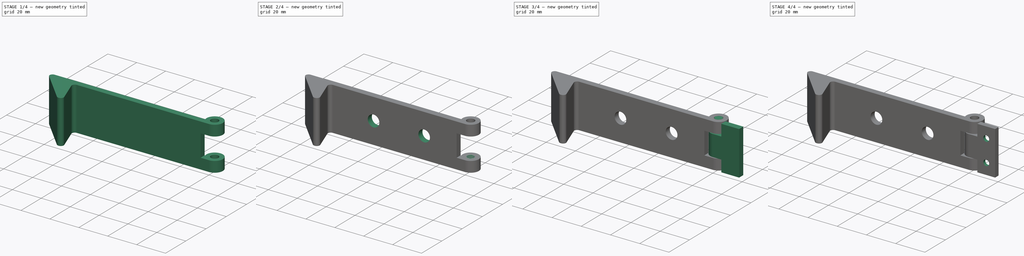
[diagram: build sequence overview — one tinted view per stage of 4, left to right]
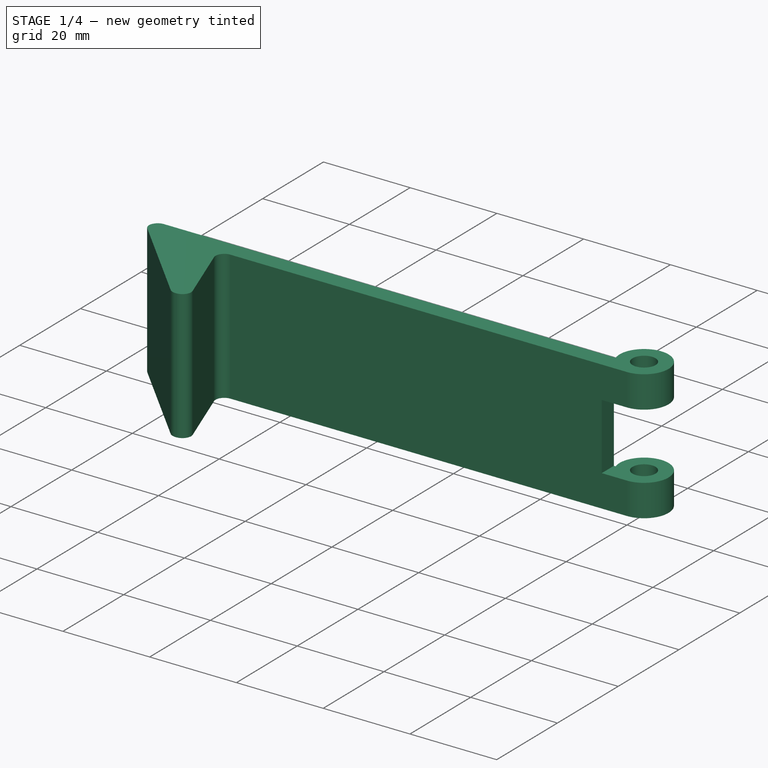
[diagram: stage 1 of 4 — iso view after this stage's code; geometry added in this stage tinted green]
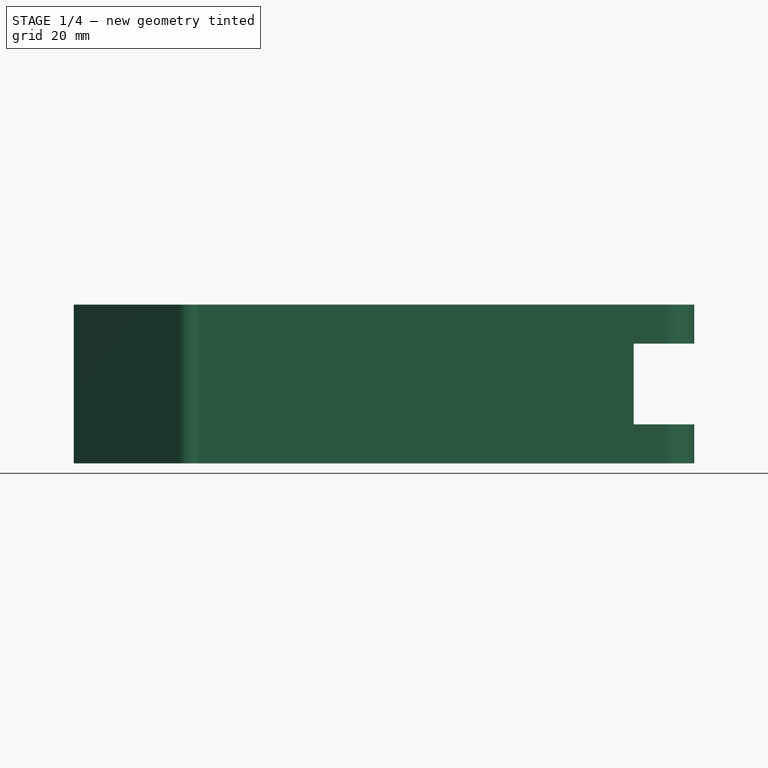
[diagram: stage 1 of 4 — front view after this stage's code; geometry added in this stage tinted green]
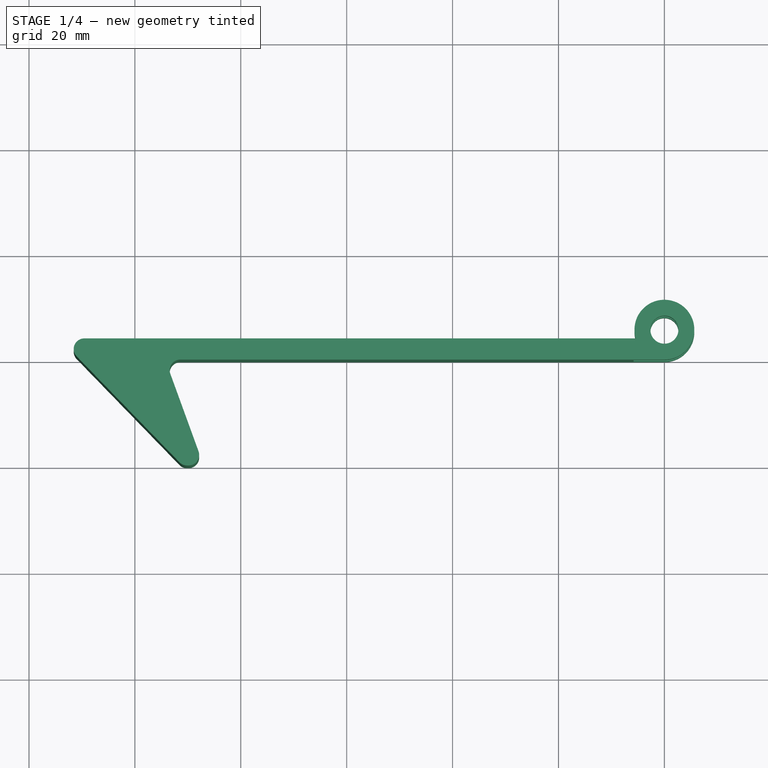
[diagram: stage 1 of 4 — top view after this stage's code; geometry added in this stage tinted green]
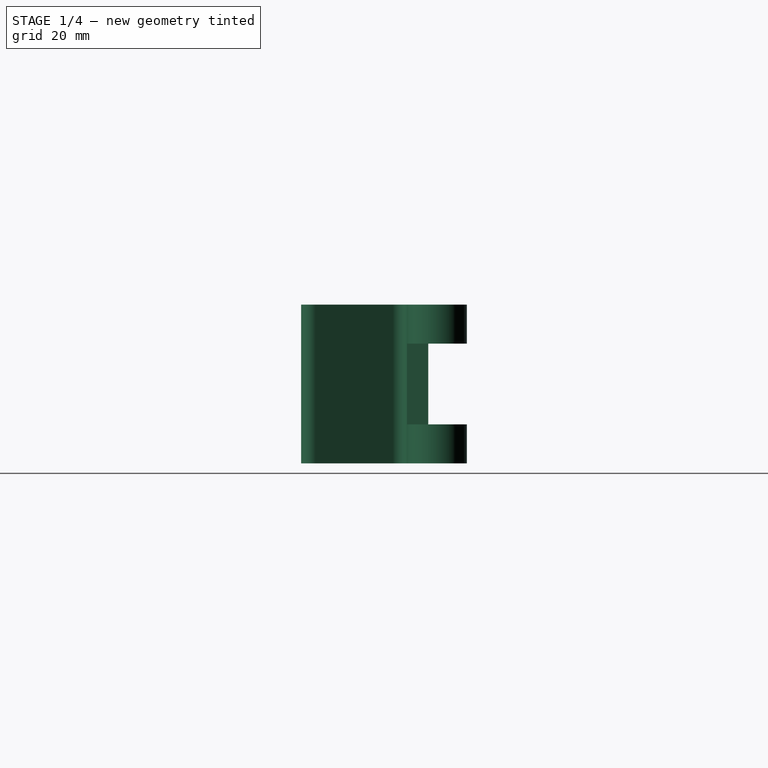
[diagram: stage 1 of 4 — right view after this stage's code; geometry added in this stage tinted green]
FCSTD DOCUMENT  (FreeCAD 0.20RUnknown)
Label: GitterStopper
License: All rights reserved
LicenseURL: http://en.wikipedia.org/wiki/All_rights_reserved
objects: Sketcher::SketchObject×9, PartDesign::Pad×4, PartDesign::Pocket×4, PartDesign::Fillet×2, PartDesign::Hole×2, PartDesign::Body×2
note: 35 computed .brp shape members not serialized (recipe doc carries the construction recipe); baked Part::Feature solids carry a one-line shape summary decoded from their .brp

FEATURE [Sketcher::SketchObject] Sketch
  FullyConstrained = true
  MapMode = 5
  Support = -> [XY_Plane]
  sketch-geometry (18):
    g0: Circle CenterX=10 CenterY=-10 CenterZ=0 NormalX=0 NormalY=0 NormalZ=1 AngleXU=0 Radius=10
    g1: LineSegment StartX=120 StartY=0 StartZ=0 EndX=138 EndY=0 EndZ=0
    g2: LineSegment StartX=138 StartY=0 StartZ=0 EndX=138 EndY=-50 EndZ=0
    g3: LineSegment StartX=138 StartY=-50 StartZ=0 EndX=120 EndY=-50 EndZ=0
    g4: LineSegment StartX=120 StartY=-50 StartZ=0 EndX=120 EndY=0 EndZ=0
    g5: Circle CenterX=40 CenterY=-10 CenterZ=0 NormalX=0 NormalY=0 NormalZ=1 AngleXU=0 Radius=10
    g6: LineSegment StartX=30 StartY=-10 StartZ=0 EndX=30 EndY=0 EndZ=0
    g7: LineSegment StartX=25.7185 StartY=0 StartZ=0 EndX=120 EndY=0 EndZ=0
    g8: LineSegment StartX=5.71852 StartY=4 StartZ=0 EndX=28.9979 EndY=-20 EndZ=0
    g9: LineSegment StartX=28.9979 StartY=-20 StartZ=0 EndX=32.9979 EndY=-20 EndZ=0
    g10: LineSegment StartX=25.7185 StartY=0 StartZ=0 EndX=32.9979 EndY=-20 EndZ=0
    g11: LineSegment StartX=32.9979 StartY=-20 StartZ=0 EndX=40 EndY=-20 EndZ=0
    g12: LineSegment StartX=40 StartY=-10 StartZ=0 EndX=40 EndY=-20 EndZ=0
    g13: Circle CenterX=120 CenterY=5.65 CenterZ=0 NormalX=0 NormalY=0 NormalZ=1 AngleXU=0 Radius=2.65
    g14: LineSegment StartX=120 StartY=5.65 StartZ=0 EndX=120 EndY=3 EndZ=0
    g15: LineSegment StartX=120 StartY=3 StartZ=0 EndX=120 EndY=0 EndZ=0
    g16: LineSegment StartX=114.596 StartY=4 StartZ=0 EndX=5.71852 EndY=4 EndZ=0
    g17: ArcOfCircle CenterX=120 CenterY=5.65 CenterZ=0 NormalX=0 NormalY=0 NormalZ=1 AngleXU=0 Radius=5.65 StartAngle=4.71239 EndAngle=9.72113
  constraints (53):
    c: Tangent(g0,g-1)
    c: Tangent(g0,g-2)
    c: Diameter(g0) = 20
    c: Coincident(g1,g2)
    c: Coincident(g2,g3)
    c: Coincident(g3,g4)
    c: Coincident(g4,g1)
    c: Horizontal(g1)
    c: Horizontal(g3)
    c: Vertical(g2)
    c: Vertical(g4)
    c: DistanceX(g1,g1) = 18
    c: DistanceY(g4,g4) = 50
    c: DistanceX(g-1,g1) = 120  'length'
    c: Tangent(g5,g-1)
    c: Equal(g0,g5)
    c: PointOnObject(g6,g5)
    c: PointOnObject(g6,g-1)
    c: Vertical(g6)
    c: Tangent(g6,g5)
    c: DistanceX(g6,g1) = 90
    c: PointOnObject(g7,g-1)
    c: Coincident(g7,g1)
    c: Coincident(g16,g8)
    c: Coincident(g8,g9)
    c: Horizontal(g9)
    c: PointOnObject(g1,g-1)
    c: Coincident(g10,g7)
    c: Coincident(g10,g9)
    c: Tangent(g5,g10)
    c: Coincident(g11,g9)
    c: Horizontal(g11)
    c: Coincident(g12,g5)
    c: Coincident(g12,g11)
    c: Vertical(g12)
    c: PointOnObject(g11,g5)
    c: DistanceX(g9,g9) = 4
    c: Angle(g10,g7) = 1.22173
    c: DistanceX(g16,g7) = 20
    c: Diameter(g13) = 5.3
    c: Coincident(g15,g7)
    c: Coincident(g14,g15)
    c: Vertical(g14)
    c: Vertical(g15)
    c: PointOnObject(g14,g13)
    c: DistanceY(g15,g15) = 3
    c: Horizontal(g16)
    c: Coincident(g14,g13)
    c: DistanceY(g7,g8) = 4
    c: Coincident(g17,g13)
    c: Coincident(g17,g7)
    c: Coincident(g16,g17)
    c: DistanceY(g-1,g13) = 5.65  'd'
FEATURE [PartDesign::Pad] Pad
  Direction = (0,0,1)
  Length = 30
  Length2 = 10
  Profile = -> Sketch
  ReferenceAxis = -> Sketch [N_Axis]
  Type = 0
FEATURE [PartDesign::Fillet] Fillet
  Base = -> Pad [Edge1,Edge14,Edge11,Edge8]
  BaseFeature = -> Pad
  Radius = 2
  SupportTransform = false
  UseAllEdges = false
FEATURE [Sketcher::SketchObject] Sketch001
  ExternalGeometry = -> [Fillet]
  FullyConstrained = true
  MapMode = 5
  Placement = pos=(0,0,0) rot=(1,0,0;1.5708rad)
  Support = -> [Fillet]
  expr: .Constraints.cut = (5.3 + 6) / 2 + 0.15
  sketch-geometry (6):
    g0: LineSegment StartX=114.2 StartY=7.375 StartZ=0 EndX=134.2 EndY=7.375 EndZ=0
    g1: LineSegment StartX=134.2 StartY=7.375 StartZ=0 EndX=134.2 EndY=22.625 EndZ=0
    g2: LineSegment StartX=134.2 StartY=22.625 StartZ=0 EndX=114.2 EndY=22.625 EndZ=0
    g3: LineSegment StartX=114.2 StartY=22.625 StartZ=0 EndX=114.2 EndY=7.375 EndZ=0
    g4: LineSegment StartX=120 StartY=30 StartZ=0 EndX=120 EndY=22.625 EndZ=0
    g5: LineSegment StartX=120 StartY=0 StartZ=0 EndX=120 EndY=7.375 EndZ=0
  constraints (18):
    c: Coincident(g0,g1)
    c: Coincident(g1,g2)
    c: Coincident(g2,g3)
    c: Coincident(g3,g0)
    c: Horizontal(g0)
    c: Horizontal(g2)
    c: Vertical(g1)
    c: Vertical(g3)
    c: DistanceX(g2,g2) = 20
    c: Coincident(g4,g-3)
    c: PointOnObject(g4,g2)
    c: Vertical(g4)
    c: Coincident(g5,g-3)
    c: PointOnObject(g5,g0)
    c: Vertical(g5)
    c: Equal(g5,g4)
    c: DistanceX(g2,g4) = 5.8  'cut'
    c: DistanceY(g1,g1) = 15.25
FEATURE [PartDesign::Pocket] Pocket
  BaseFeature = -> Fillet
  Direction = (0,1,-2e-16)
  Length = 5
  Length2 = 5
  Profile = -> Sketch001
  ReferenceAxis = -> Sketch001 [N_Axis]
  Type = 1
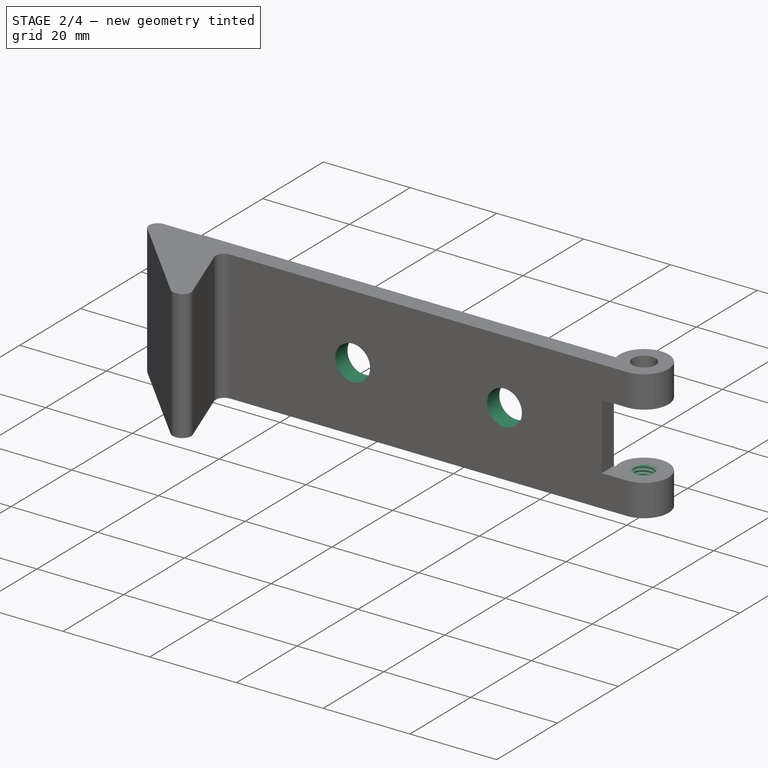
[diagram: stage 2 of 4 — iso view after this stage's code; geometry added in this stage tinted green]
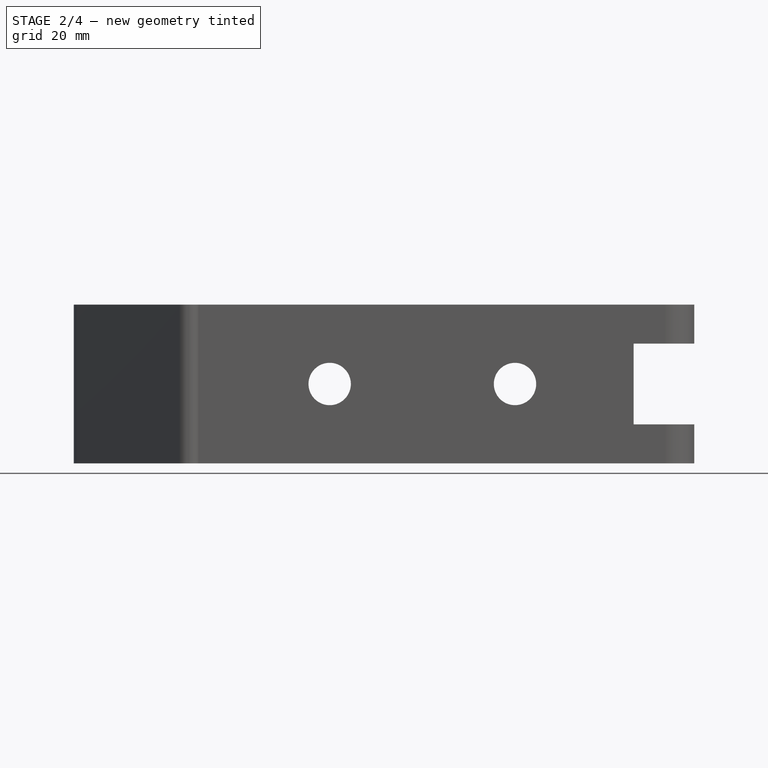
[diagram: stage 2 of 4 — front view after this stage's code; geometry added in this stage tinted green]
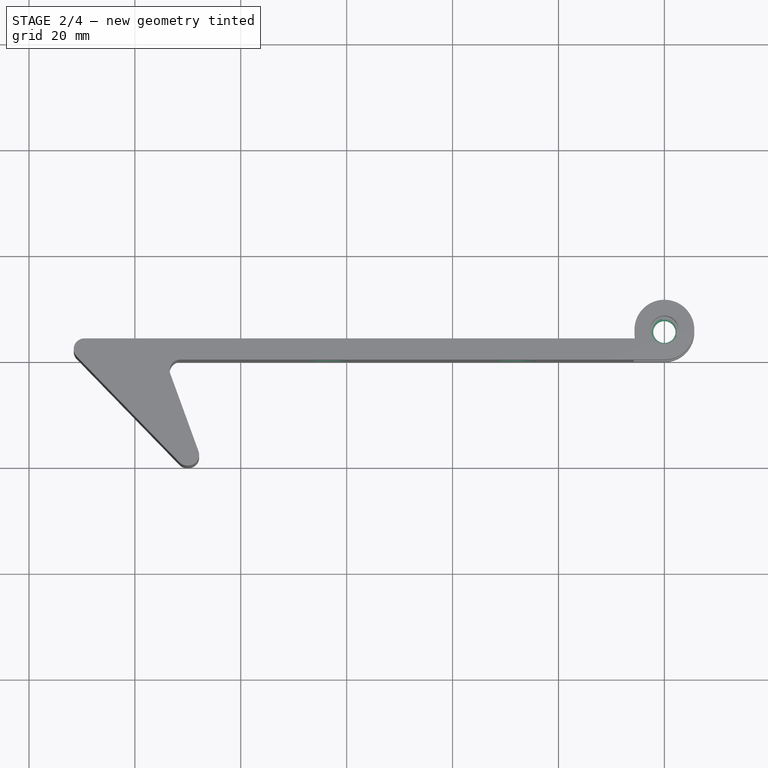
[diagram: stage 2 of 4 — top view after this stage's code; geometry added in this stage tinted green]
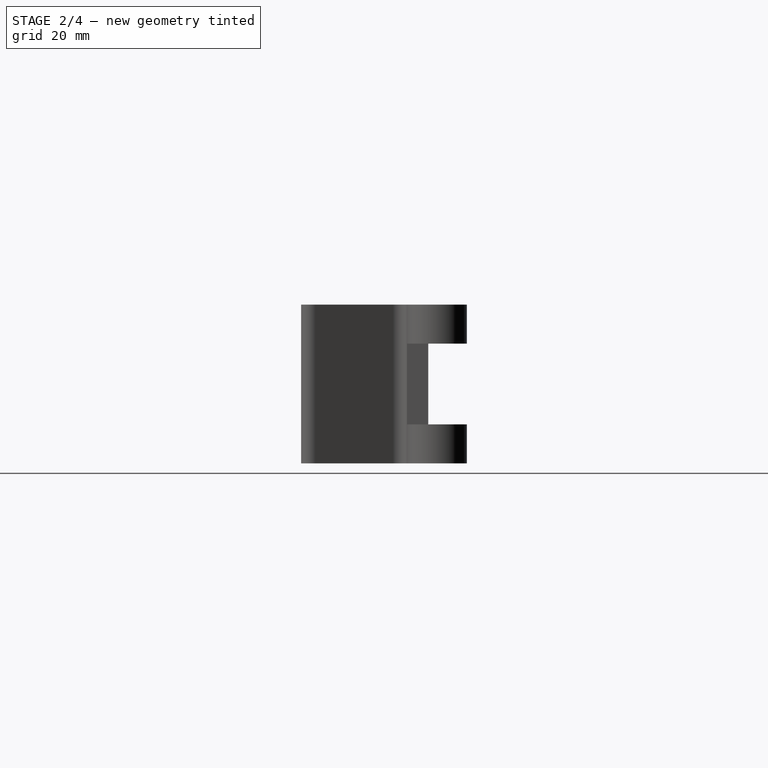
[diagram: stage 2 of 4 — right view after this stage's code; geometry added in this stage tinted green]
FEATURE [Sketcher::SketchObject] Sketch007
  ExternalGeometry = -> [Pocket]
  FullyConstrained = true
  MapMode = 5
  Placement = pos=(0,0,0) rot=(1,0,0;3.14159rad)
  Support = -> [Pocket]
  sketch-geometry (2):
    g0: LineSegment StartX=120 StartY=-5.65 StartZ=0 EndX=120 EndY=-3 EndZ=0
    g1: Circle CenterX=120 CenterY=-5.65 CenterZ=0 NormalX=0 NormalY=0 NormalZ=1 AngleXU=0 Radius=2.65
  constraints (5):
    c: Coincident(g0,g-3)
    c: PointOnObject(g0,g-3)
    c: Vertical(g0)
    c: Coincident(g1,g0)
    c: PointOnObject(g0,g1)
FEATURE [PartDesign::Pad] Pad003
  BaseFeature = -> Pocket
  Direction = (0,0,-1)
  Length = 10
  Length2 = 10
  Profile = -> Sketch007
  ReferenceAxis = -> Sketch007 [N_Axis]
  Type = 3
  UpToFace = -> Pocket [Face4]
FEATURE [PartDesign::Hole] Hole001
  BaseFeature = -> Pad003
  CustomThreadClearance = 0
  Depth = 15
  DepthType = 0
  Diameter = 4.224
  DrillForDepth = false
  DrillPoint = 1
  DrillPointAngle = 118
  HoleCutCountersinkAngle = 90
  HoleCutCustomValues = false
  HoleCutDepth = 0
  HoleCutDiameter = 6.1
  HoleCutType = 0
  ModelThread = true
  Profile = -> Sketch007
  Tapered = false
  TaperedAngle = 90
  ThreadClass = 0
  ThreadDepth = 15
  ThreadDepthType = 0
  ThreadDirection = 0
  ThreadFit = 0
  ThreadSize = 13
  ThreadType = 1
  Threaded = true
  UseCustomThreadClearance = false
FEATURE [PartDesign::Body] Body001
  Group = -> [Sketch002,Pad001,Sketch003,Pocket001,Sketch004,Pad002,Sketch005,Hole,Sketch006,Pocket002,Fillet001]
  Origin = -> Origin001
  Tip = -> Fillet001
FEATURE [Sketcher::SketchObject] Sketch008
  ExternalGeometry = -> [Hole001]
  FullyConstrained = true
  MapMode = 5
  Placement = pos=(0,0,0) rot=(1,0,0;1.5708rad)
  Support = -> [Hole001]
  sketch-geometry (10):
    g0: LineSegment StartX=28.5748 StartY=0 StartZ=0 EndX=56.7874 EndY=0 EndZ=0
    g1: LineSegment StartX=56.7874 StartY=0 StartZ=0 EndX=91.7874 EndY=0 EndZ=0
    g2: LineSegment StartX=91.7874 StartY=0 StartZ=0 EndX=120 EndY=0 EndZ=0
    g3: LineSegment StartX=56.7874 StartY=0 StartZ=0 EndX=56.7874 EndY=15 EndZ=0
    g4: LineSegment StartX=56.7874 StartY=15 StartZ=0 EndX=56.7874 EndY=30 EndZ=0
    g5: LineSegment StartX=91.7874 StartY=0 StartZ=0 EndX=91.7874 EndY=15 EndZ=0
    g6: LineSegment StartX=91.7874 StartY=15 StartZ=0 EndX=91.7874 EndY=30 EndZ=0
    g7: LineSegment StartX=56.7874 StartY=15 StartZ=0 EndX=91.7874 EndY=15 EndZ=0
    g8: Circle CenterX=56.7874 CenterY=15 CenterZ=0 NormalX=0 NormalY=0 NormalZ=1 AngleXU=0 Radius=4
    g9: Circle CenterX=91.7874 CenterY=15 CenterZ=0 NormalX=0 NormalY=0 NormalZ=1 AngleXU=0 Radius=4
  constraints (26):
    c: Coincident(g-4,g0)
    c: Horizontal(g0)
    c: Coincident(g0,g1)
    c: Coincident(g1,g2)
    c: Coincident(g2,g-4)
    c: Horizontal(g2)
    c: Coincident(g0,g3)
    c: Vertical(g3)
    c: Coincident(g3,g4)
    c: PointOnObject(g4,g-3)
    c: Vertical(g4)
    c: Coincident(g1,g5)
    c: Vertical(g5)
    c: Coincident(g5,g6)
    c: PointOnObject(g6,g-3)
    c: Vertical(g6)
    c: Coincident(g3,g7)
    c: Coincident(g7,g5)
    c: Horizontal(g7)
    c: Equal(g4,g3)
    c: Equal(g0,g2)
    c: Coincident(g8,g3)
    c: Coincident(g9,g5)
    c: Equal(g8,g9)
    c: Diameter(g8) = 8
    c: DistanceX(g7,g7) = 35
FEATURE [PartDesign::Pocket] Pocket003
  BaseFeature = -> Hole001
  Direction = (0,1,-2e-16)
  Length = 5
  Length2 = 5
  Profile = -> Sketch008
  ReferenceAxis = -> Sketch008 [N_Axis]
  Type = 1
FEATURE [PartDesign::Body] Body
  Group = -> [Sketch,Pad,Fillet,Sketch001,Pocket,Sketch007,Pad003,Hole001,Sketch008,Pocket003]
  Origin = -> Origin
  Tip = -> Pocket003
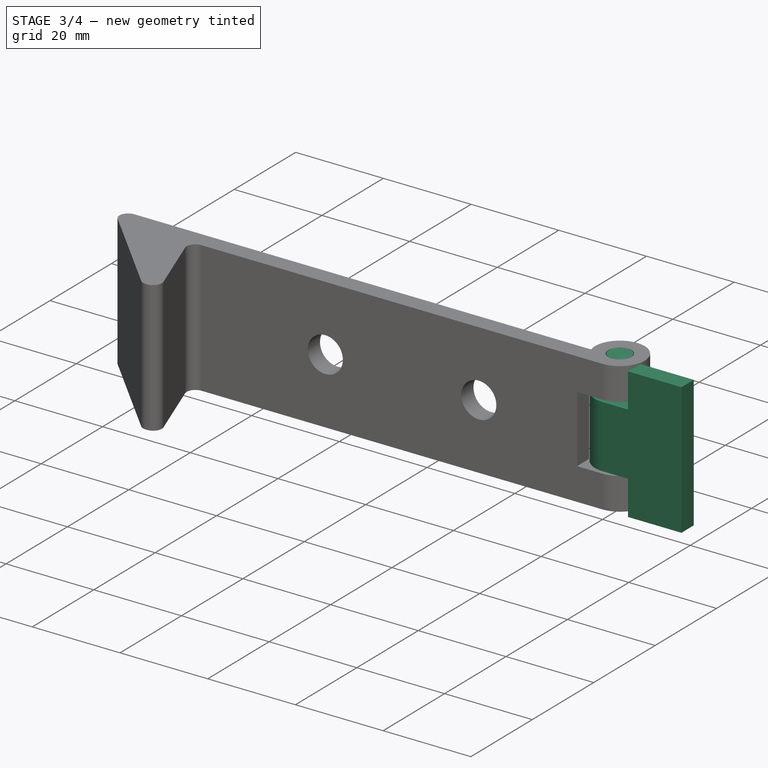
[diagram: stage 3 of 4 — iso view after this stage's code; geometry added in this stage tinted green]
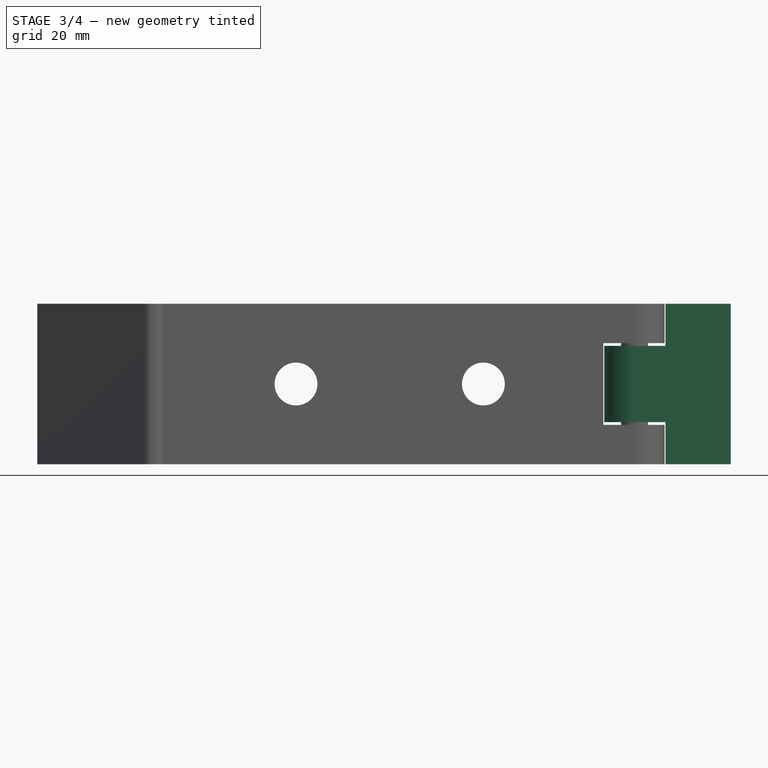
[diagram: stage 3 of 4 — front view after this stage's code; geometry added in this stage tinted green]
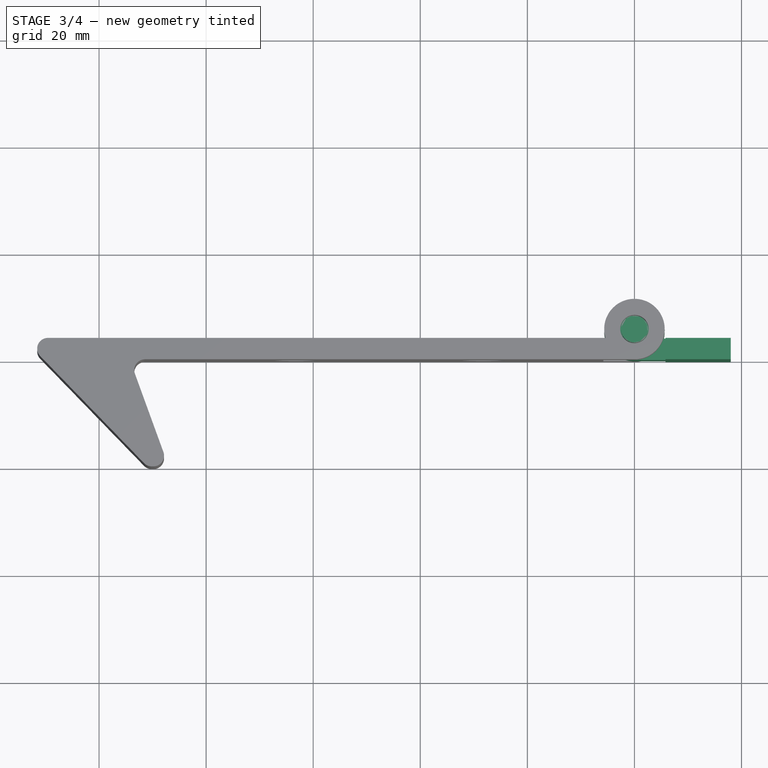
[diagram: stage 3 of 4 — top view after this stage's code; geometry added in this stage tinted green]
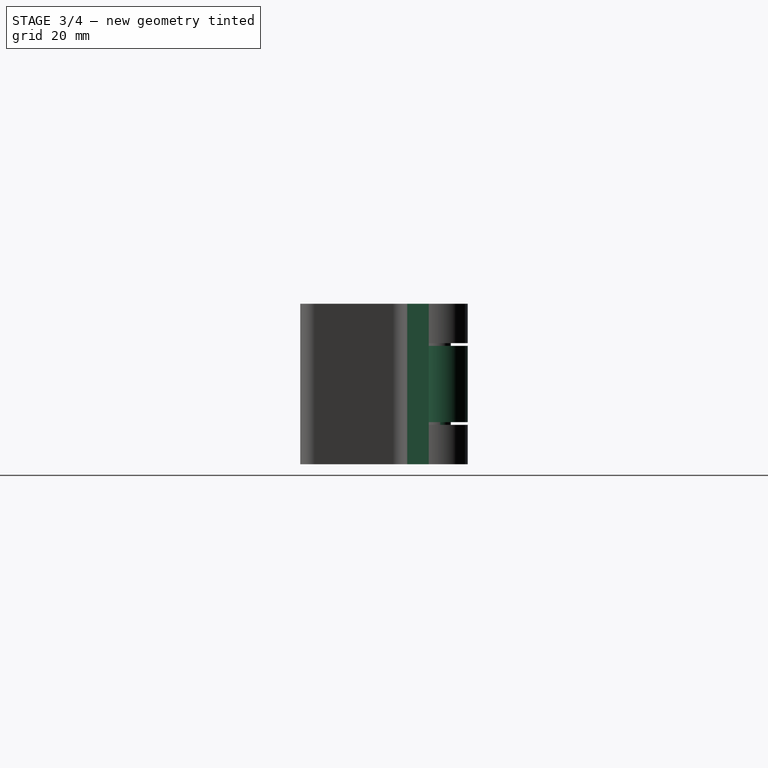
[diagram: stage 3 of 4 — right view after this stage's code; geometry added in this stage tinted green]
FEATURE [Sketcher::SketchObject] Sketch002
  FullyConstrained = true
  MapMode = 5
  Support = -> [XY_Plane001]
  expr: Constraints[11] = <<Sketch>>.Constraints.d
  expr: Constraints[7] = <<Sketch>>.Constraints.length
  sketch-geometry (6):
    g0: LineSegment StartX=120 StartY=0 StartZ=0 EndX=138 EndY=0 EndZ=0
    g1: LineSegment StartX=138 StartY=0 StartZ=0 EndX=138 EndY=4 EndZ=0
    g2: LineSegment StartX=138 StartY=4 StartZ=0 EndX=125.404 EndY=4 EndZ=0
    g3: GeomPoint X=120 Y=5.65 Z=0
    g4: ArcOfCircle CenterX=120 CenterY=5.65 CenterZ=0 NormalX=0 NormalY=0 NormalZ=1 AngleXU=0 Radius=5.65 StartAngle=5.98683 EndAngle=10.9956
    g5: LineSegment StartX=120 StartY=5.65 StartZ=0 EndX=120 EndY=0 EndZ=0
  constraints (16):
    c: Coincident(g0,g1)
    c: Coincident(g1,g2)
    c: Horizontal(g0)
    c: Vertical(g1)
    c: DistanceX(g0,g0) = 18
    c: DistanceY(g1,g1) = 4
    c: Horizontal(g2)
    c: DistanceX(g-1,g3) = 120
    c: Coincident(g4,g3)
    c: Coincident(g4,g0)
    c: Coincident(g4,g2)
    c: DistanceY(g-1,g4) = 5.65
    c: Coincident(g5,g4)
    c: Coincident(g5,g0)
    c: Vertical(g5)
    c: PointOnObject(g0,g-1)
FEATURE [PartDesign::Pad] Pad001
  Direction = (0,0,1)
  Length = 30
  Length2 = 10
  Profile = -> Sketch002
  ReferenceAxis = -> Sketch002 [N_Axis]
  Type = 0
FEATURE [Sketcher::SketchObject] Sketch003
  ExternalGeometry = -> [Pad001]
  FullyConstrained = true
  MapMode = 5
  Placement = pos=(0,0,0) rot=(1,0,0;1.5708rad)
  Support = -> [Pad001]
  expr: Constraints[27] = <<Sketch001>>.Constraints.cut
  sketch-geometry (14):
    g0: LineSegment StartX=125.8 StartY=22.125 StartZ=0 EndX=110.8 EndY=22.125 EndZ=0
    g1: LineSegment StartX=110.8 StartY=22.125 StartZ=0 EndX=110.8 EndY=37.125 EndZ=0
    g2: LineSegment StartX=110.8 StartY=37.125 StartZ=0 EndX=125.8 EndY=37.125 EndZ=0
    g3: LineSegment StartX=125.8 StartY=37.125 StartZ=0 EndX=125.8 EndY=22.125 EndZ=0
    g4: LineSegment StartX=125.8 StartY=7.875 StartZ=0 EndX=110.8 EndY=7.875 EndZ=0
    g5: LineSegment StartX=110.8 StartY=7.875 StartZ=0 EndX=110.8 EndY=-7.125 EndZ=0
    g6: LineSegment StartX=110.8 StartY=-7.125 StartZ=0 EndX=125.8 EndY=-7.125 EndZ=0
    g7: LineSegment StartX=125.8 StartY=-7.125 StartZ=0 EndX=125.8 EndY=7.875 EndZ=0
    g8: LineSegment StartX=110.8 StartY=22.125 StartZ=0 EndX=110.8 EndY=7.875 EndZ=0
    g9: LineSegment StartX=120 StartY=25.125 StartZ=0 EndX=125.8 EndY=25.125 EndZ=0
    g10: LineSegment StartX=125.8 StartY=25.125 StartZ=0 EndX=125.8 EndY=22.125 EndZ=0
    g11: LineSegment StartX=120 StartY=30 StartZ=0 EndX=120 EndY=22.125 EndZ=0
    g12: LineSegment StartX=120 StartY=22.125 StartZ=0 EndX=120 EndY=7.875 EndZ=0
    g13: LineSegment StartX=120 StartY=7.875 StartZ=0 EndX=120 EndY=0 EndZ=0
  constraints (40):
    c: Coincident(g0,g1)
    c: Coincident(g1,g2)
    c: Coincident(g2,g3)
    c: Coincident(g3,g0)
    c: Horizontal(g0)
    c: Horizontal(g2)
    c: Vertical(g1)
    c: Vertical(g3)
    c: Coincident(g4,g5)
    c: Coincident(g5,g6)
    c: Coincident(g6,g7)
    c: Coincident(g7,g4)
    c: Horizontal(g4)
    c: Horizontal(g6)
    c: Vertical(g5)
    c: Vertical(g7)
    c: Equal(g4,g0)
    c: Equal(g3,g7)
    c: Coincident(g8,g0)
    c: Coincident(g8,g4)
    c: Vertical(g8)
    c: Horizontal(g9)
    c: Coincident(g9,g10)
    c: Coincident(g10,g0)
    c: Vertical(g10)
    c: DistanceY(g1,g1) = 15
    c: DistanceX(g2,g2) = 15
    c: DistanceX(g9,g9) = 5.8
    c: PointOnObject(g9,g-3)
    c: Coincident(g-3,g11)
    c: PointOnObject(g11,g0)
    c: Vertical(g11)
    c: Coincident(g11,g12)
    c: PointOnObject(g12,g4)
    c: Coincident(g12,g13)
    c: Coincident(g13,g-3)
    c: Vertical(g13)
    c: Equal(g13,g11)
    c: DistanceY(g8,g8) = 14.25
    c: DistanceY(g0,g9) = 3
FEATURE [PartDesign::Pocket] Pocket001
  BaseFeature = -> Pad001
  Direction = (0,1,-2e-16)
  Length = 5
  Length2 = 5
  Profile = -> Sketch003
  ReferenceAxis = -> Sketch003 [N_Axis]
  Type = 1
FEATURE [Sketcher::SketchObject] Sketch004
  FullyConstrained = false
  MapMode = 5
  Support = -> [XY_Plane001]
  sketch-geometry (1):
    g0: Circle CenterX=120 CenterY=5.65 CenterZ=0 NormalX=0 NormalY=0 NormalZ=1 AngleXU=0 Radius=2.5
  constraints (1):
    c: Diameter(g0) = 5
FEATURE [PartDesign::Pad] Pad002
  BaseFeature = -> Pocket001
  Direction = (0,0,1)
  Length = 30
  Length2 = 10
  Profile = -> Sketch004
  ReferenceAxis = -> Sketch004 [N_Axis]
  Type = 0
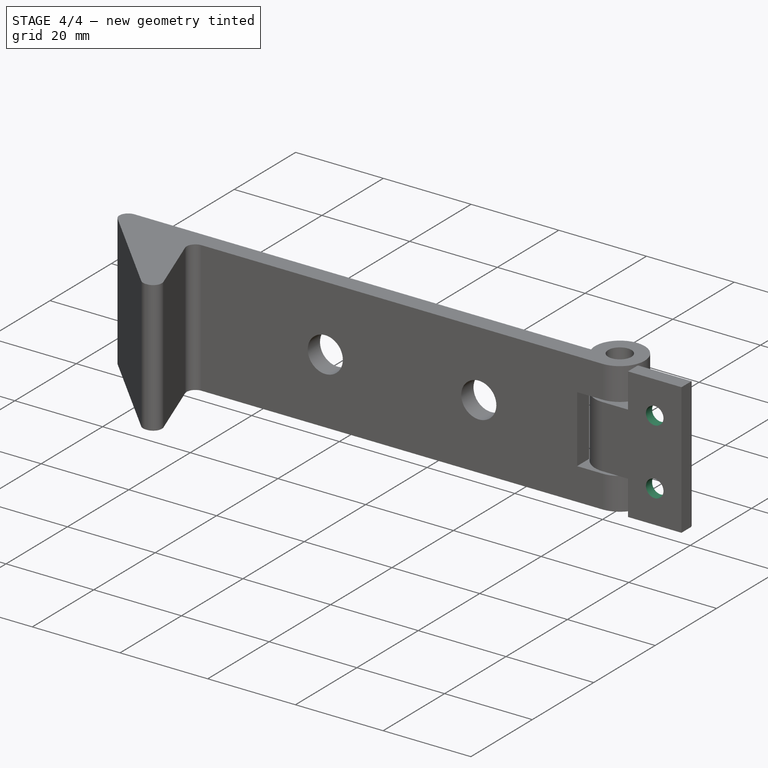
[diagram: stage 4 of 4 — iso view after this stage's code; geometry added in this stage tinted green]
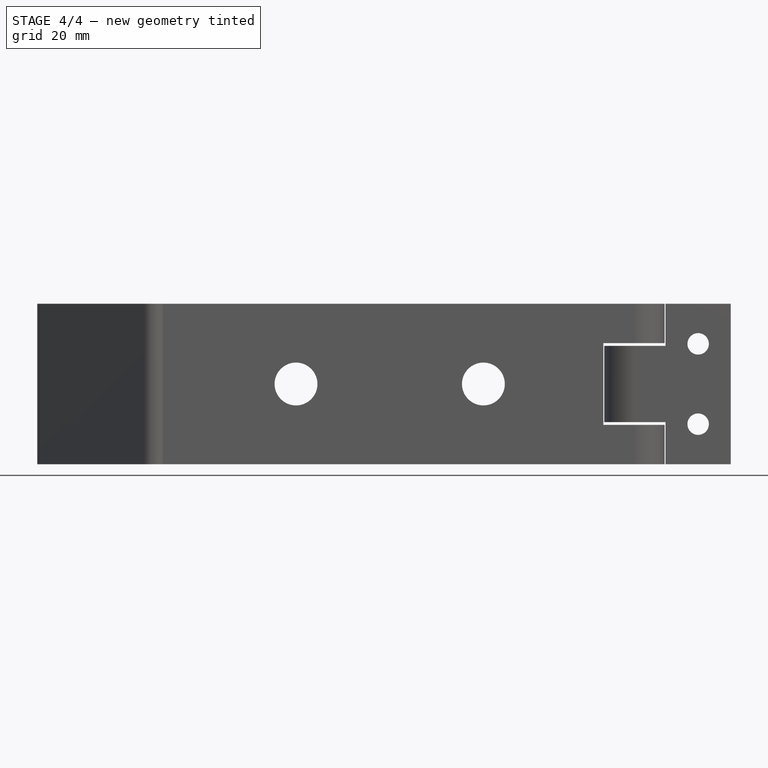
[diagram: stage 4 of 4 — front view after this stage's code; geometry added in this stage tinted green]
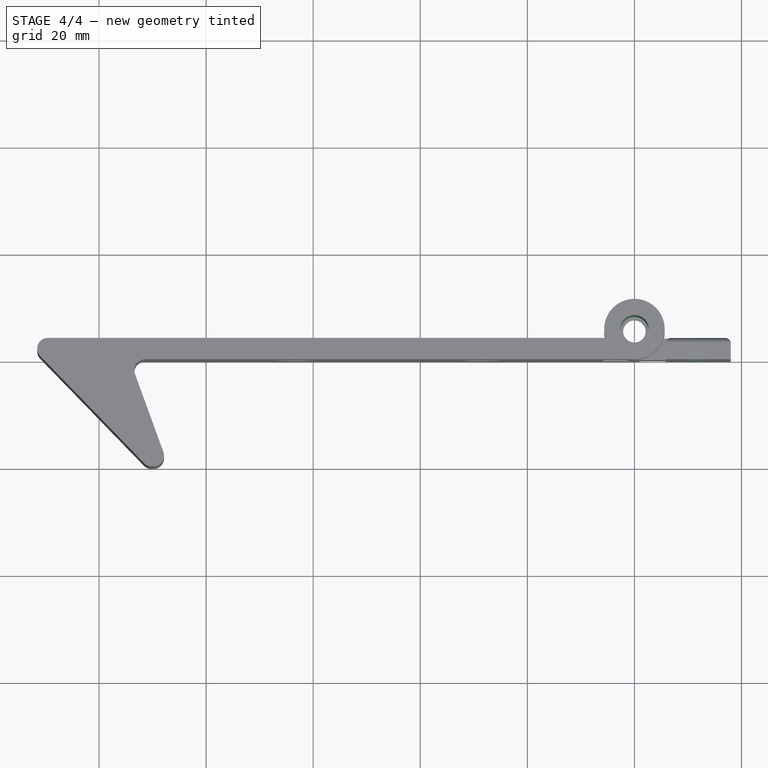
[diagram: stage 4 of 4 — top view after this stage's code; geometry added in this stage tinted green]
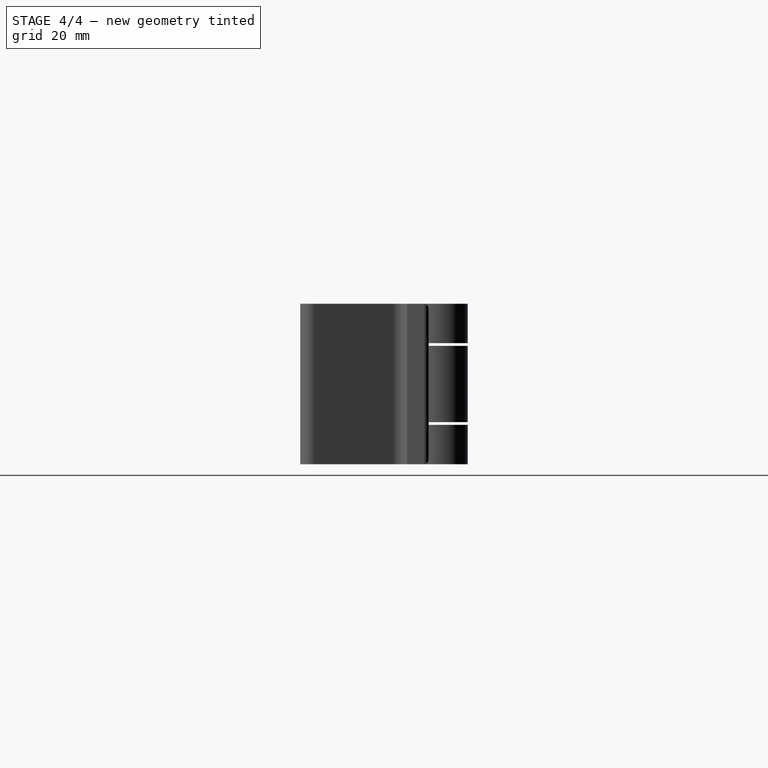
[diagram: stage 4 of 4 — right view after this stage's code; geometry added in this stage tinted green]
FEATURE [Sketcher::SketchObject] Sketch005
  ExternalGeometry = -> [Pad002]
  FullyConstrained = true
  MapMode = 5
  Placement = pos=(0,4,0) rot=(0,0.707107,0.707107;3.14159rad)
  Support = -> [Pad002]
  sketch-geometry (7):
    g0: LineSegment StartX=-138 StartY=30 StartZ=0 EndX=-131.9 EndY=30 EndZ=0
    g1: LineSegment StartX=-125.8 StartY=30 StartZ=0 EndX=-131.9 EndY=30 EndZ=0
    g2: LineSegment StartX=-131.9 StartY=30 StartZ=0 EndX=-131.9 EndY=22.5 EndZ=0
    g3: LineSegment StartX=-131.9 StartY=22.5 StartZ=0 EndX=-131.9 EndY=7.5 EndZ=0
    g4: LineSegment StartX=-131.9 StartY=7.5 StartZ=0 EndX=-131.9 EndY=0 EndZ=0
    g5: Circle CenterX=-131.9 CenterY=22.5 CenterZ=0 NormalX=0 NormalY=0 NormalZ=1 AngleXU=0 Radius=2
    g6: Circle CenterX=-131.9 CenterY=7.5 CenterZ=0 NormalX=0 NormalY=0 NormalZ=1 AngleXU=0 Radius=2
  constraints (18):
    c: Coincident(g0,g-5)
    c: Horizontal(g0)
    c: Coincident(g1,g-3)
    c: Coincident(g1,g0)
    c: Coincident(g2,g0)
    c: Vertical(g2)
    c: Coincident(g3,g2)
    c: Vertical(g3)
    c: PointOnObject(g4,g-1)
    c: Vertical(g4)
    c: Equal(g2,g4)
    c: Coincident(g3,g4)
    c: Coincident(g5,g2)
    c: Coincident(g6,g3)
    c: Equal(g5,g6)
    c: Diameter(g5) = 4
    c: Equal(g0,g1)
    c: DistanceY(g3,g3) = 15
FEATURE [PartDesign::Hole] Hole
  BaseFeature = -> Pad002
  CustomThreadClearance = 0
  Depth = 80.4357
  DepthType = 1
  Diameter = 4
  DrillForDepth = false
  DrillPoint = 1
  DrillPointAngle = 118
  HoleCutCountersinkAngle = 90
  HoleCutCustomValues = false
  HoleCutDepth = 0
  HoleCutDiameter = 8
  HoleCutType = 2
  ModelThread = false
  Profile = -> Sketch005
  Tapered = false
  TaperedAngle = 90
  ThreadClass = 0
  ThreadDepth = 80.4357
  ThreadDepthType = 0
  ThreadDirection = 0
  ThreadFit = 0
  ThreadSize = 0
  ThreadType = 0
  Threaded = false
  UseCustomThreadClearance = false
FEATURE [Sketcher::SketchObject] Sketch006
  FullyConstrained = false
  MapMode = 5
  Placement = pos=(0,0,30) rot=(0,0,1;0rad)
  sketch-geometry (2):
    g0: Circle CenterX=120 CenterY=5.65 CenterZ=0 NormalX=0 NormalY=0 NormalZ=1 AngleXU=0 Radius=2.65
    g1: LineSegment StartX=120 StartY=5.65 StartZ=0 EndX=120 EndY=8.3 EndZ=0
  constraints (3):
    c: Coincident(g1,g0)
    c: PointOnObject(g1,g0)
    c: Vertical(g1)
FEATURE [PartDesign::Pocket] Pocket002
  BaseFeature = -> Hole
  Direction = (0,0,-1)
  Length = 5
  Length2 = 5
  Profile = -> Sketch006
  ReferenceAxis = -> Sketch006 [N_Axis]
  Type = 1
FEATURE [PartDesign::Fillet] Fillet001
  Base = -> Pocket002 [Edge24,Edge19,Edge15,Edge26,Edge28]
  BaseFeature = -> Pocket002
  Radius = 1
  SupportTransform = false
  UseAllEdges = false
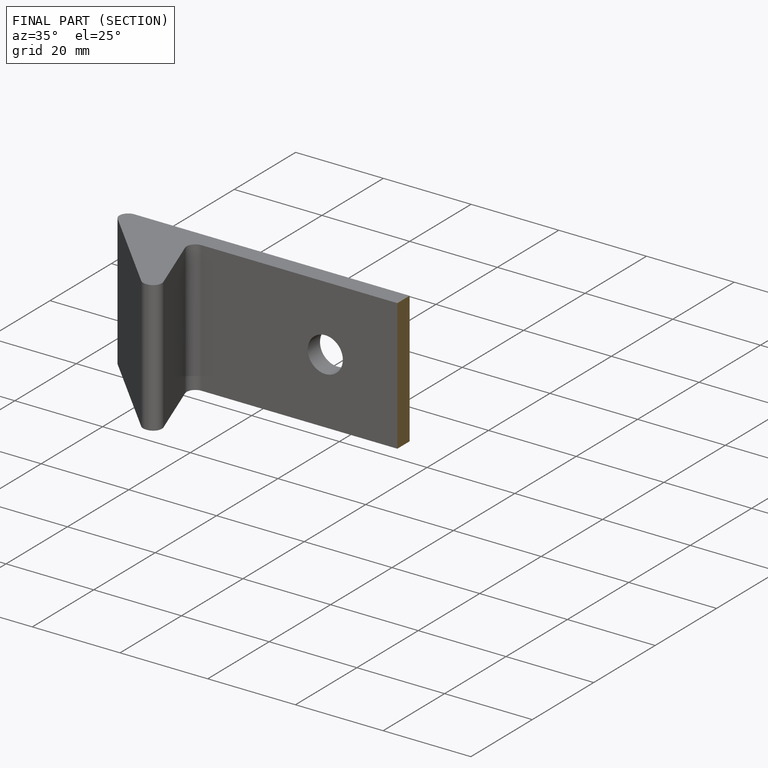
[diagram: finished part — half-section view (interior)]
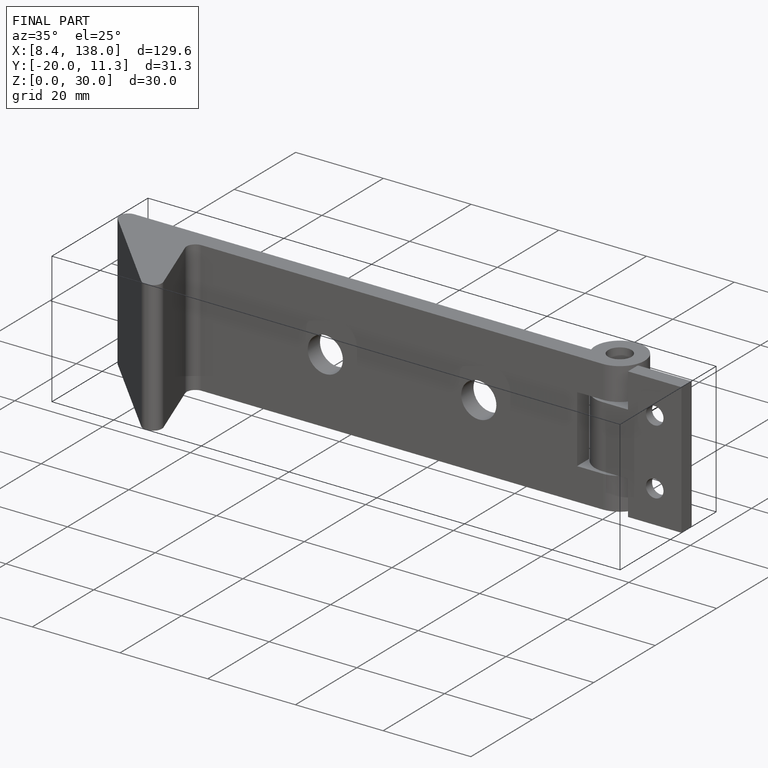
[diagram: finished part — iso view with bounding-box wireframe]
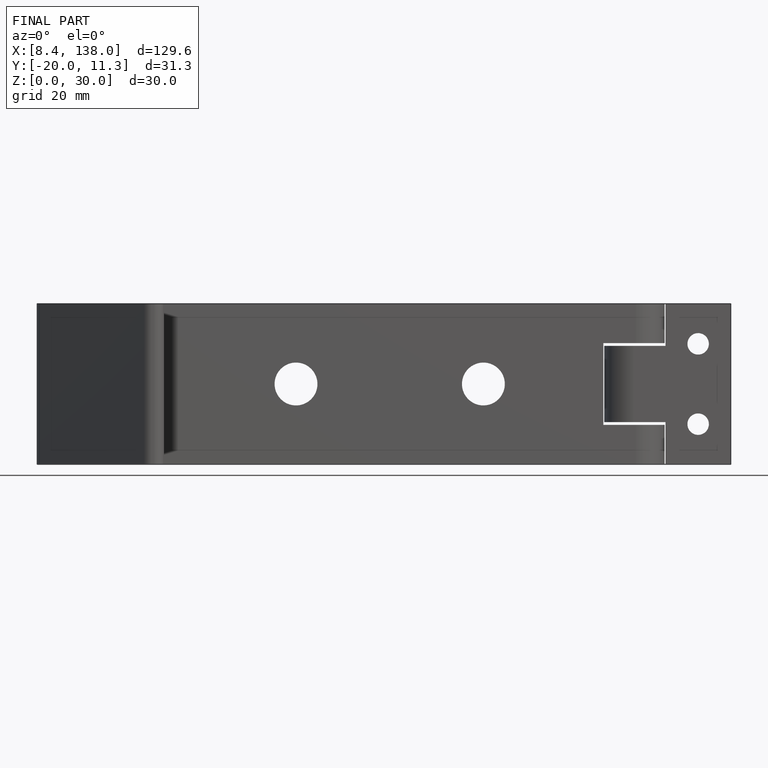
[diagram: finished part — front view with bounding-box wireframe]
